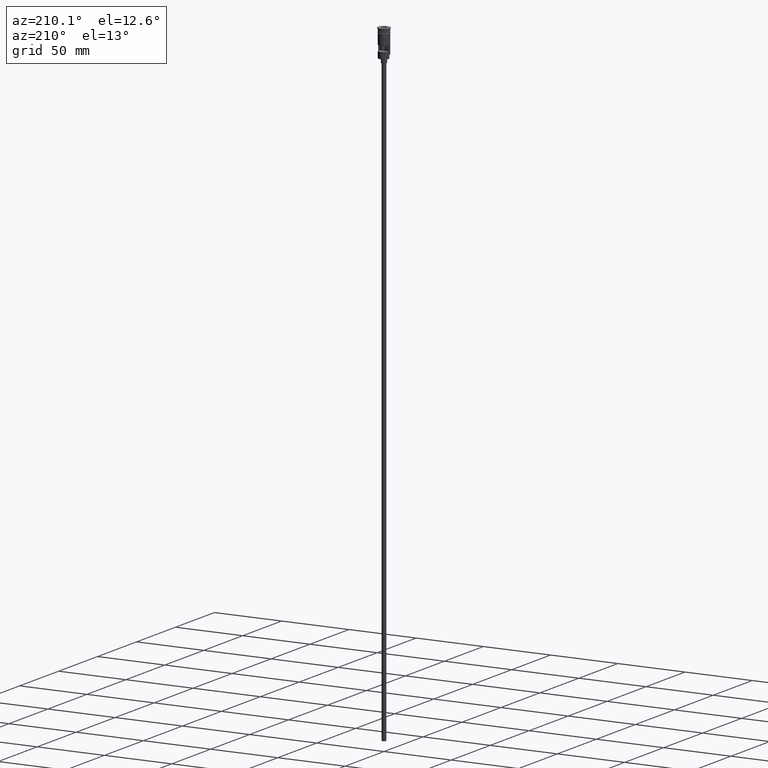
[diagram: clean part render]
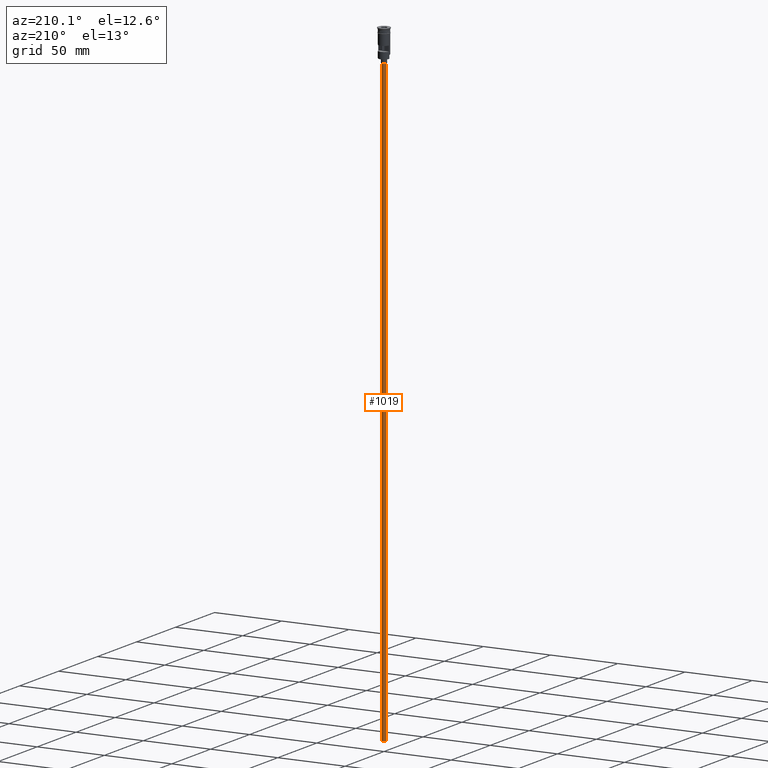
[diagram: same view with one face highlighted and labeled with its STEP entity id]
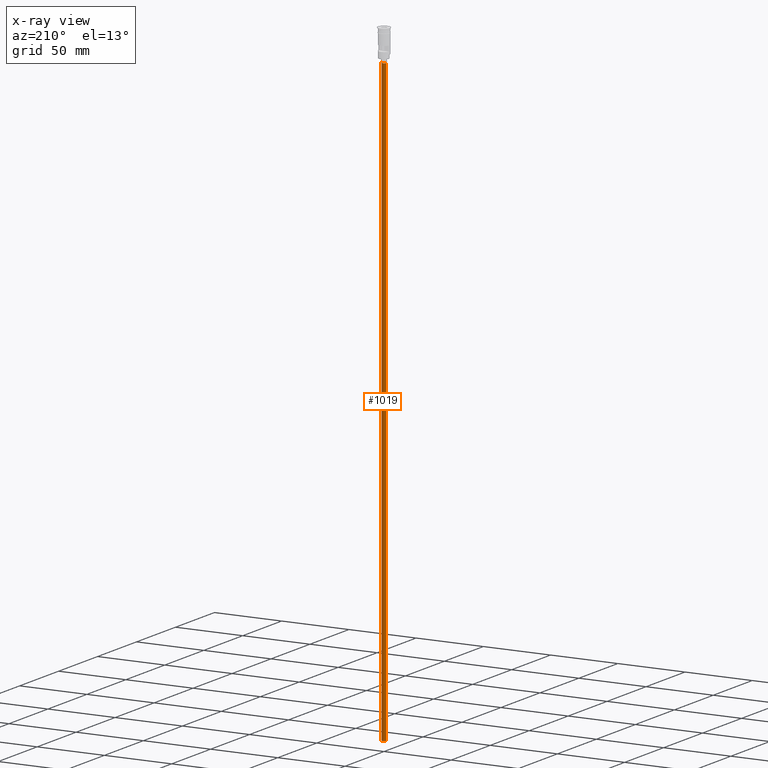
[diagram: x-ray of the same camera — body ghosted, the highlighted face saturated]
A machine part, auxiliary view. The second image highlights one B-rep face of the part: STEP entity #1019.
The next image is the same camera in x-ray: the body ghosted, the highlighted face saturated — about 0% of this face is hidden behind the body in this view.
In plain terms, the highlighted cylindrical surface (edge-blend (fillet) strip) has radius 1.5 mm, axis along (-0, -0, 1).
Its self-contained STEP definition (entity closure, byte-faithful):
#49 = FACE_OUTER_BOUND ( 'NONE', #1482, .T. ) ;
#57 = CARTESIAN_POINT ( 'NONE',  ( 1.500000000000000222, 0.000000000000000000, -470.5000000000000568 ) ) ;
#204 = VERTEX_POINT ( 'NONE', #298 ) ;
#223 = AXIS2_PLACEMENT_3D ( 'NONE', #1518, #1399, #789 ) ;
#236 = CARTESIAN_POINT ( 'NONE',  ( 1.500000000000000222, 0.000000000000000000, -470.5000000000000568 ) ) ;
#298 = CARTESIAN_POINT ( 'NONE',  ( 1.500000000000000222, 0.000000000000000000, -23.49999999999999645 ) ) ;
#328 = DIRECTION ( 'NONE',  ( -1.000000000000000000, 0.000000000000000000, 0.000000000000000000 ) ) ;
#348 = CARTESIAN_POINT ( 'NONE',  ( 0.000000000000000000, 0.000000000000000000, -470.5000000000000568 ) ) ;
#359 = LINE ( 'NONE', #236, #1033 ) ;
#393 = VERTEX_POINT ( 'NONE', #741 ) ;
#446 = ORIENTED_EDGE ( 'NONE', *, *, #1103, .F. ) ;
#473 = VERTEX_POINT ( 'NONE', #835 ) ;
#705 = EDGE_CURVE ( 'NONE', #393, #204, #778, .T. ) ;
#720 = DIRECTION ( 'NONE',  ( -0.000000000000000000, -0.000000000000000000, 1.000000000000000000 ) ) ;
#741 = CARTESIAN_POINT ( 'NONE',  ( -1.500000000000000222, 1.836970198721030181E-16, -23.49999999999999645 ) ) ;
#758 = ORIENTED_EDGE ( 'NONE', *, *, #1506, .T. ) ;
#778 = CIRCLE ( 'NONE', #1396, 1.500000000000000222 ) ;
#789 = DIRECTION ( 'NONE',  ( 1.000000000000000000, 0.000000000000000000, 0.000000000000000000 ) ) ;
#825 = DIRECTION ( 'NONE',  ( -1.000000000000000000, 0.000000000000000000, 0.000000000000000000 ) ) ;
#835 = CARTESIAN_POINT ( 'NONE',  ( -1.500000000000000222, 1.836970198721030181E-16, -470.5000000000000568 ) ) ;
#843 = DIRECTION ( 'NONE',  ( 0.000000000000000000, 0.000000000000000000, -1.000000000000000000 ) ) ;
#846 = LINE ( 'NONE', #1330, #861 ) ;
#861 = VECTOR ( 'NONE', #720, 1000.000000000000000 ) ;
#1019 = ADVANCED_FACE ( 'NONE', ( #49 ), #1026, .T. ) ;
#1022 = VERTEX_POINT ( 'NONE', #57 ) ;
#1026 = CYLINDRICAL_SURFACE ( 'NONE', #223, 1.500000000000000222 ) ;
#1033 = VECTOR ( 'NONE', #1220, 1000.000000000000000 ) ;
#1064 = CIRCLE ( 'NONE', #1171, 1.500000000000000222 ) ;
#1103 = EDGE_CURVE ( 'NONE', #1022, #204, #359, .T. ) ;
#1171 = AXIS2_PLACEMENT_3D ( 'NONE', #348, #843, #825 ) ;
#1220 = DIRECTION ( 'NONE',  ( -0.000000000000000000, -0.000000000000000000, 1.000000000000000000 ) ) ;
#1231 = EDGE_CURVE ( 'NONE', #473, #1022, #1064, .T. ) ;
#1330 = CARTESIAN_POINT ( 'NONE',  ( -1.500000000000000222, 1.836970198721030181E-16, -470.5000000000000568 ) ) ;
#1378 = DIRECTION ( 'NONE',  ( 0.000000000000000000, 0.000000000000000000, -1.000000000000000000 ) ) ;
#1396 = AXIS2_PLACEMENT_3D ( 'NONE', #1425, #1378, #328 ) ;
#1399 = DIRECTION ( 'NONE',  ( -0.000000000000000000, -0.000000000000000000, 1.000000000000000000 ) ) ;
#1413 = ORIENTED_EDGE ( 'NONE', *, *, #1231, .F. ) ;
#1425 = CARTESIAN_POINT ( 'NONE',  ( 0.000000000000000000, 0.000000000000000000, -23.49999999999999645 ) ) ;
#1446 = ORIENTED_EDGE ( 'NONE', *, *, #705, .T. ) ;
#1482 = EDGE_LOOP ( 'NONE', ( #1413, #758, #1446, #446 ) ) ;
#1506 = EDGE_CURVE ( 'NONE', #473, #393, #846, .T. ) ;
#1518 = CARTESIAN_POINT ( 'NONE',  ( 0.000000000000000000, 0.000000000000000000, -470.5000000000000568 ) ) ;